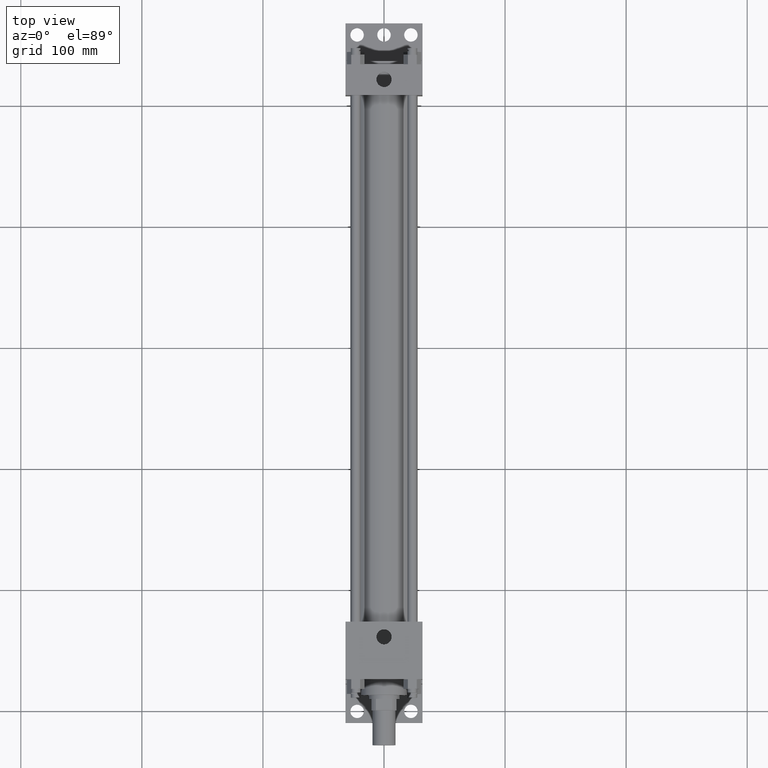
[diagram: clean part render]
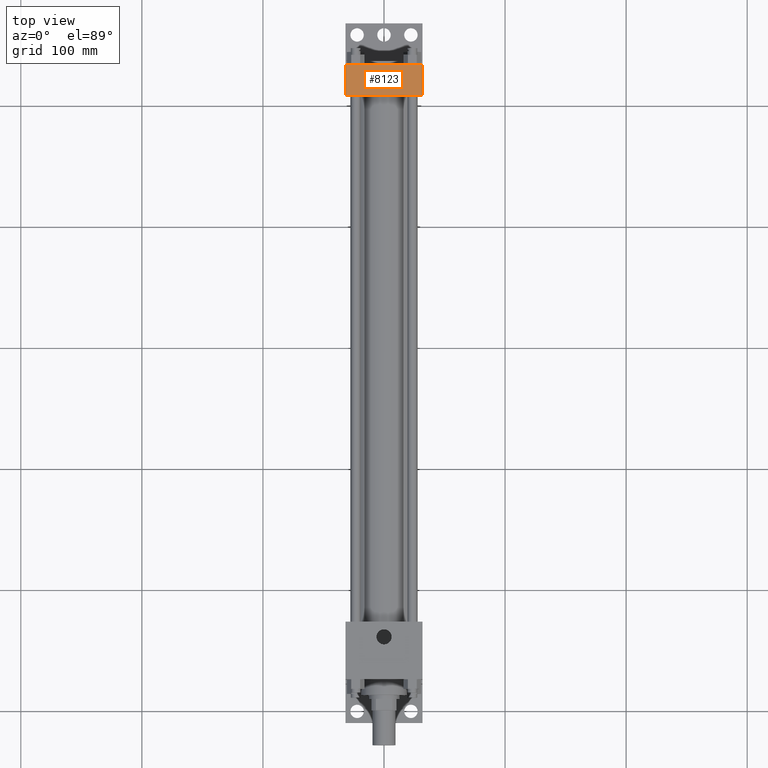
[diagram: same view with one face highlighted and labeled with its STEP entity id]
A machine part, top view. The second image highlights one B-rep face of the part: STEP entity #8123.
In plain terms, the highlighted planar face has unit normal (0, 0, 1).
Its self-contained STEP definition (entity closure, byte-faithful):
#3425=VERTEX_POINT('',#3426);
#3426=CARTESIAN_POINT('',(3.175000000E+001,5.080000000E+002,3.175000000E+001));
#3427=EDGE_CURVE('',#3425,#3432,#3428,.T.);
#3428=LINE('',#3429,#3430);
#3429=CARTESIAN_POINT('',(3.175000000E+001,5.080000000E+002,3.175000000E+001));
#3430=VECTOR('',#3431,1.0E+000);
#3431=DIRECTION('',(-1.0E+000,0.0E+000,0.0E+000));
#3432=VERTEX_POINT('',#3433);
#3433=CARTESIAN_POINT('',(-3.175000000E+001,5.080000000E+002,3.175000000E+001));
#3618=VERTEX_POINT('',#3619);
#3619=CARTESIAN_POINT('',(-3.175000000E+001,5.334000000E+002,3.175000000E+001));
#3620=EDGE_CURVE('',#3625,#3618,#3621,.T.);
#3621=LINE('',#3622,#3623);
#3622=CARTESIAN_POINT('',(3.175000000E+001,5.334000000E+002,3.175000000E+001));
#3623=VECTOR('',#3624,1.0E+000);
#3624=DIRECTION('',(-1.0E+000,0.0E+000,0.0E+000));
#3625=VERTEX_POINT('',#3626);
#3626=CARTESIAN_POINT('',(3.175000000E+001,5.334000000E+002,3.175000000E+001));
#3701=EDGE_CURVE('',#3625,#3425,#3702,.T.);
#3702=LINE('',#3703,#3704);
#3703=CARTESIAN_POINT('',(3.175000000E+001,5.334000000E+002,3.175000000E+001));
#3704=VECTOR('',#3705,1.0E+000);
#3705=DIRECTION('',(0.0E+000,-1.0E+000,0.0E+000));
#3751=FACE_OUTER_BOUND('',#3753,.T.);
#3752=FACE_BOUND('',#3754,.T.);
#3753=EDGE_LOOP('',(#3755));
#3754=EDGE_LOOP('',(#3764,#3765,#3766,#3767));
#3755=ORIENTED_EDGE('',*,*,#3756,.T.);
#3756=EDGE_CURVE('',#3762,#3762,#3757,.T.);
#3757=CIRCLE('',#3758,6.243320000E+000);
#3758=AXIS2_PLACEMENT_3D('',#3759,#3760,#3761);
#3759=CARTESIAN_POINT('',(0.000000000E+000,5.207000000E+002,3.175000000E+001));
#3760=DIRECTION('',(0.0E+000,0.0E+000,-1.0E+000));
#3761=DIRECTION('',(-1.0E+000,0.0E+000,0.0E+000));
#3762=VERTEX_POINT('',#3763);
#3763=CARTESIAN_POINT('',(-6.243320000E+000,5.207000000E+002,3.175000000E+001));
#3764=ORIENTED_EDGE('',*,*,#3768,.T.);
#3765=ORIENTED_EDGE('',*,*,#3427,.F.);
#3766=ORIENTED_EDGE('',*,*,#3701,.F.);
#3767=ORIENTED_EDGE('',*,*,#3620,.T.);
#3768=EDGE_CURVE('',#3618,#3432,#3769,.T.);
#3769=LINE('',#3770,#3771);
#3770=CARTESIAN_POINT('',(-3.175000000E+001,5.334000000E+002,3.175000000E+001));
#3771=VECTOR('',#3772,1.0E+000);
#3772=DIRECTION('',(0.0E+000,-1.0E+000,0.0E+000));
#3773=PLANE('',#3774);
#3774=AXIS2_PLACEMENT_3D('',#3775,#3776,#3777);
#3775=CARTESIAN_POINT('',(3.175000000E+001,5.334000000E+002,3.175000000E+001));
#3776=DIRECTION('',(0.0E+000,0.0E+000,1.0E+000));
#3777=DIRECTION('',(1.0E+000,0.0E+000,0.0E+000));
#8123=ADVANCED_FACE('',(#3751,#3752),#3773,.T.);